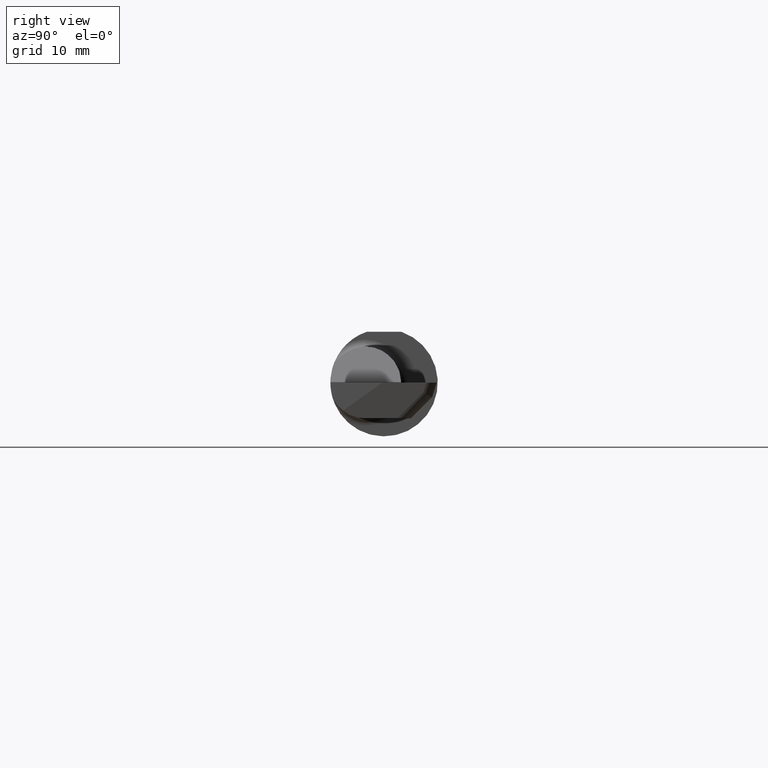
[diagram: clean part render]
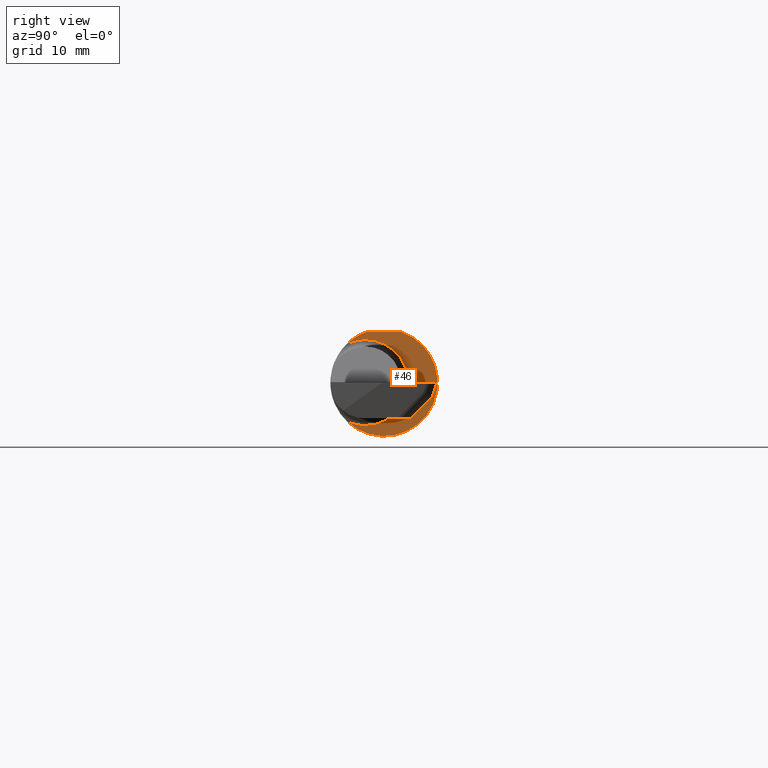
[diagram: same view with one face highlighted and labeled with its STEP entity id]
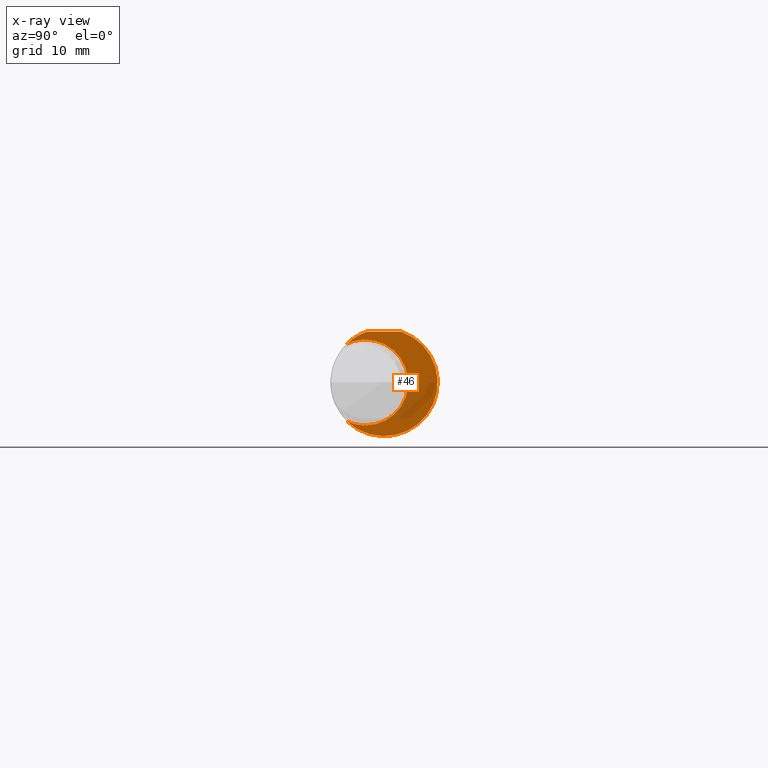
[diagram: x-ray of the same camera — body ghosted, the highlighted face saturated]
A machine part, right view. The second image highlights one B-rep face of the part: STEP entity #46.
The next image is the same camera in x-ray: the body ghosted, the highlighted face saturated — about 24% of this face is hidden behind the body in this view.
In plain terms, the highlighted planar face has unit normal (1, 0, 0).
Its self-contained STEP definition (entity closure, byte-faithful):
#9 = ORIENTED_EDGE ( 'NONE', *, *, #927, .T. ) ;
#26 = FACE_OUTER_BOUND ( 'NONE', #673, .T. ) ;
#28 = EDGE_CURVE ( 'NONE', #44, #722, #902, .T. ) ;
#29 = DIRECTION ( 'NONE',  ( 0.000000000000000000, 0.000000000000000000, -1.000000000000000000 ) ) ;
#44 = VERTEX_POINT ( 'NONE', #804 ) ;
#46 = ADVANCED_FACE ( 'NONE', ( #26 ), #415, .T. ) ;
#61 = AXIS2_PLACEMENT_3D ( 'NONE', #701, #84, #29 ) ;
#74 = DIRECTION ( 'NONE',  ( 1.000000000000000000, 0.000000000000000000, 0.000000000000000000 ) ) ;
#82 = CARTESIAN_POINT ( 'NONE',  ( 1.483000000000000096, -0.06535000000000003306, 0.000000000000000000 ) ) ;
#84 = DIRECTION ( 'NONE',  ( 1.000000000000000000, 0.000000000000000000, 0.000000000000000000 ) ) ;
#90 = ORIENTED_EDGE ( 'NONE', *, *, #28, .T. ) ;
#93 = DIRECTION ( 'NONE',  ( 0.000000000000000000, 0.000000000000000000, -1.000000000000000000 ) ) ;
#97 = EDGE_CURVE ( 'NONE', #722, #916, #142, .T. ) ;
#142 = CIRCLE ( 'NONE', #463, 0.1499999999999999389 ) ;
#169 = DIRECTION ( 'NONE',  ( 0.000000000000000000, 0.000000000000000000, -1.000000000000000000 ) ) ;
#186 = VECTOR ( 'NONE', #507, 39.37007874015748143 ) ;
#193 = CARTESIAN_POINT ( 'NONE',  ( 1.483000000000000096, 0.1000000000000000056, 0.1773499999999999799 ) ) ;
#231 = DIRECTION ( 'NONE',  ( -1.000000000000000000, -0.000000000000000000, -0.000000000000000000 ) ) ;
#275 = EDGE_CURVE ( 'NONE', #719, #779, #917, .T. ) ;
#311 = ORIENTED_EDGE ( 'NONE', *, *, #275, .T. ) ;
#314 = ORIENTED_EDGE ( 'NONE', *, *, #896, .T. ) ;
#317 = CARTESIAN_POINT ( 'NONE',  ( 1.483000000000000096, 0.000000000000000000, 0.000000000000000000 ) ) ;
#339 = CARTESIAN_POINT ( 'NONE',  ( 1.483000000000000096, -0.06039039658755174234, 0.1773499999999999799 ) ) ;
#349 = CIRCLE ( 'NONE', #61, 0.1873499999999999888 ) ;
#398 = CARTESIAN_POINT ( 'NONE',  ( 1.483000000000000096, -0.1290791507268554683, -0.1357887894770172799 ) ) ;
#415 = PLANE ( 'NONE',  #989 ) ;
#463 = AXIS2_PLACEMENT_3D ( 'NONE', #907, #843, #836 ) ;
#482 = CIRCLE ( 'NONE', #729, 0.1499999999999999389 ) ;
#488 = CARTESIAN_POINT ( 'NONE',  ( 1.483000000000000096, -0.06535000000000000531, 0.1499999999999999389 ) ) ;
#489 = CARTESIAN_POINT ( 'NONE',  ( 1.483000000000000096, -0.06535000000000003306, 0.000000000000000000 ) ) ;
#507 = DIRECTION ( 'NONE',  ( 0.000000000000000000, -1.000000000000000000, 0.000000000000000000 ) ) ;
#560 = AXIS2_PLACEMENT_3D ( 'NONE', #489, #812, #879 ) ;
#608 = ORIENTED_EDGE ( 'NONE', *, *, #619, .T. ) ;
#619 = EDGE_CURVE ( 'NONE', #916, #719, #482, .T. ) ;
#645 = CARTESIAN_POINT ( 'NONE',  ( 1.483000000000000096, 0.2596499999999999364, 0.000000000000000000 ) ) ;
#673 = EDGE_LOOP ( 'NONE', ( #9, #90, #813, #608, #311, #314 ) ) ;
#701 = CARTESIAN_POINT ( 'NONE',  ( 1.483000000000000096, 0.000000000000000000, 0.000000000000000000 ) ) ;
#719 = VERTEX_POINT ( 'NONE', #398 ) ;
#722 = VERTEX_POINT ( 'NONE', #488 ) ;
#729 = AXIS2_PLACEMENT_3D ( 'NONE', #82, #231, #169 ) ;
#746 = CARTESIAN_POINT ( 'NONE',  ( 1.483000000000000096, 0.06039039658753698331, 0.1773499999999999799 ) ) ;
#765 = VERTEX_POINT ( 'NONE', #339 ) ;
#776 = CARTESIAN_POINT ( 'NONE',  ( 1.483000000000000096, -0.06535000000000003306, -0.1499999999999999389 ) ) ;
#779 = VERTEX_POINT ( 'NONE', #746 ) ;
#804 = CARTESIAN_POINT ( 'NONE',  ( 1.483000000000000096, -0.1290791507268554683, 0.1357887894770172799 ) ) ;
#812 = DIRECTION ( 'NONE',  ( -1.000000000000000000, -0.000000000000000000, -0.000000000000000000 ) ) ;
#813 = ORIENTED_EDGE ( 'NONE', *, *, #97, .T. ) ;
#824 = AXIS2_PLACEMENT_3D ( 'NONE', #317, #74, #93 ) ;
#836 = DIRECTION ( 'NONE',  ( 0.000000000000000000, 0.000000000000000000, -1.000000000000000000 ) ) ;
#843 = DIRECTION ( 'NONE',  ( -1.000000000000000000, -0.000000000000000000, -0.000000000000000000 ) ) ;
#879 = DIRECTION ( 'NONE',  ( 0.000000000000000000, 3.528636991816341815E-15, -1.000000000000000000 ) ) ;
#890 = DIRECTION ( 'NONE',  ( 1.000000000000000000, 0.000000000000000000, 0.000000000000000000 ) ) ;
#892 = LINE ( 'NONE', #193, #186 ) ;
#896 = EDGE_CURVE ( 'NONE', #779, #765, #892, .T. ) ;
#902 = CIRCLE ( 'NONE', #560, 0.1499999999999999389 ) ;
#907 = CARTESIAN_POINT ( 'NONE',  ( 1.483000000000000096, -0.06535000000000003306, 0.000000000000000000 ) ) ;
#916 = VERTEX_POINT ( 'NONE', #776 ) ;
#917 = CIRCLE ( 'NONE', #824, 0.1873499999999999888 ) ;
#927 = EDGE_CURVE ( 'NONE', #765, #44, #349, .T. ) ;
#953 = DIRECTION ( 'NONE',  ( 0.000000000000000000, 0.000000000000000000, -1.000000000000000000 ) ) ;
#989 = AXIS2_PLACEMENT_3D ( 'NONE', #645, #890, #953 ) ;